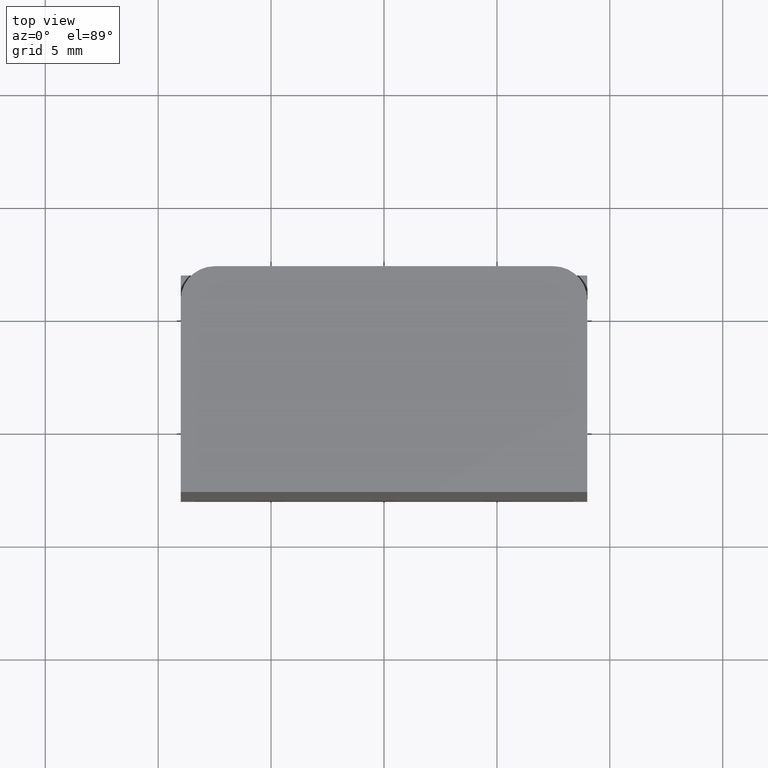
[diagram: clean part render]
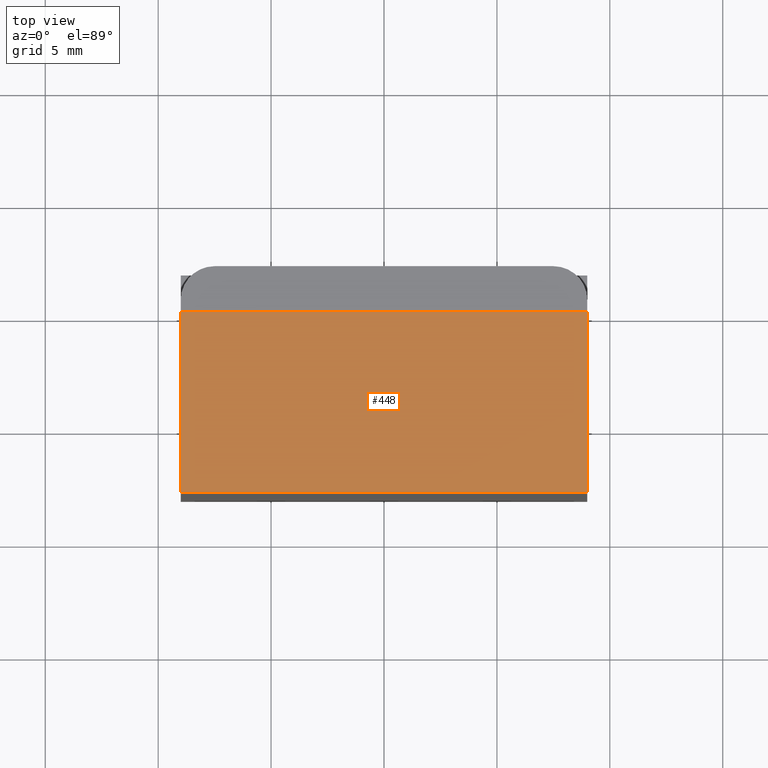
[diagram: same view with one face highlighted and labeled with its STEP entity id]
A machine part, top view. The second image highlights one B-rep face of the part: STEP entity #448.
In plain terms, the highlighted planar face has unit normal (0, 0, 1).
Its self-contained STEP definition (entity closure, byte-faithful):
#51=PLANE('',#549);
#75=FACE_OUTER_BOUND('',#106,.T.);
#106=EDGE_LOOP('',(#413,#414,#415,#416));
#137=LINE('',#765,#184);
#147=LINE('',#785,#194);
#152=LINE('',#794,#199);
#154=LINE('',#797,#201);
#184=VECTOR('',#642,10.);
#194=VECTOR('',#658,10.);
#199=VECTOR('',#665,10.);
#201=VECTOR('',#669,10.);
#238=VERTEX_POINT('',#763);
#239=VERTEX_POINT('',#764);
#246=VERTEX_POINT('',#784);
#249=VERTEX_POINT('',#792);
#289=EDGE_CURVE('',#238,#239,#137,.T.);
#299=EDGE_CURVE('',#246,#238,#147,.T.);
#304=EDGE_CURVE('',#239,#249,#152,.T.);
#306=EDGE_CURVE('',#249,#246,#154,.T.);
#413=ORIENTED_EDGE('',*,*,#289,.T.);
#414=ORIENTED_EDGE('',*,*,#304,.T.);
#415=ORIENTED_EDGE('',*,*,#306,.T.);
#416=ORIENTED_EDGE('',*,*,#299,.T.);
#448=ADVANCED_FACE('',(#75),#51,.T.);
#549=AXIS2_PLACEMENT_3D('',#798,#670,#671);
#642=DIRECTION('',(-1.,-1.2335811384724E-16,0.));
#658=DIRECTION('',(-8.88178419700125E-16,1.,0.));
#665=DIRECTION('',(-3.33066907387547E-16,-1.,0.));
#669=DIRECTION('',(1.,3.08395284618099E-16,0.));
#670=DIRECTION('center_axis',(0.,0.,1.));
#671=DIRECTION('ref_axis',(1.,0.,0.));
#763=CARTESIAN_POINT('',(8.99999999999999,-2.,25.));
#764=CARTESIAN_POINT('',(-8.99999999999999,-2.,25.));
#765=CARTESIAN_POINT('',(4.5,-2.,25.));
#784=CARTESIAN_POINT('',(9.,-9.99999999999999,25.));
#785=CARTESIAN_POINT('',(9.,-9.99999999999999,25.));
#792=CARTESIAN_POINT('',(-9.,-10.,25.));
#794=CARTESIAN_POINT('',(-8.99999999999999,1.66533453693773E-15,25.));
#797=CARTESIAN_POINT('',(-9.,-10.,25.));
#798=CARTESIAN_POINT('Origin',(1.18952466924124E-15,-5.,25.));